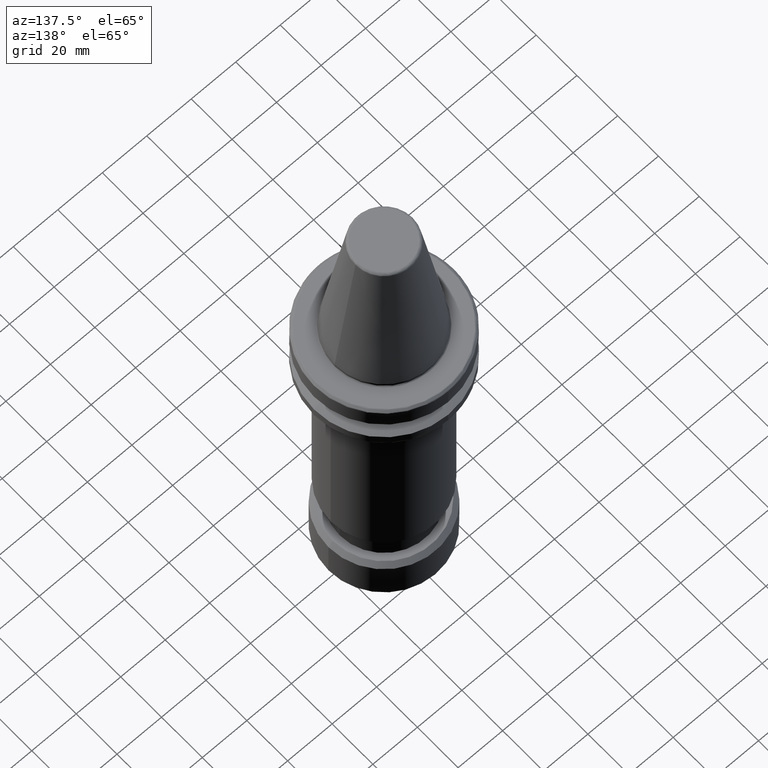
[diagram: clean part render]
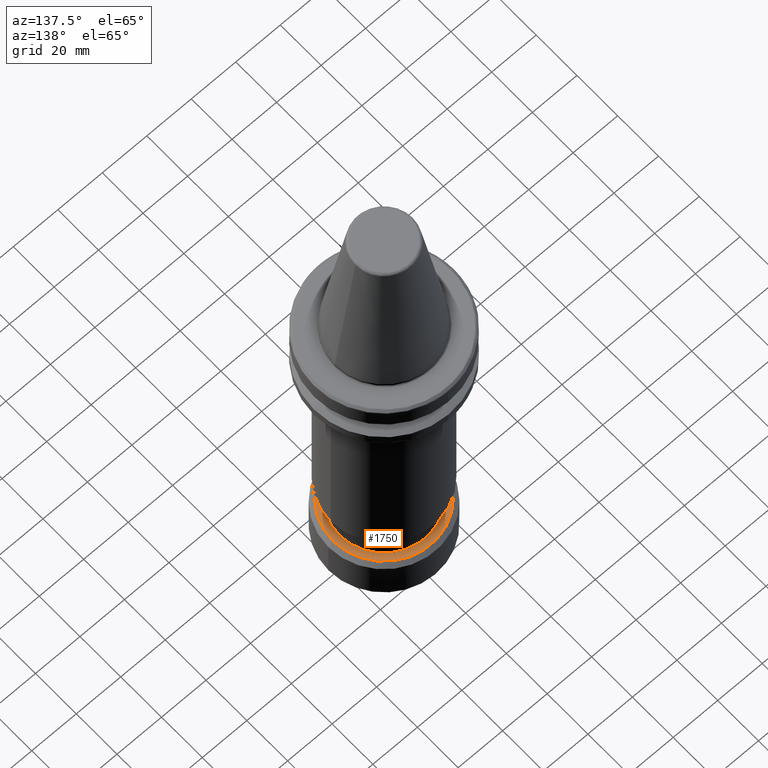
[diagram: same view with one face highlighted and labeled with its STEP entity id]
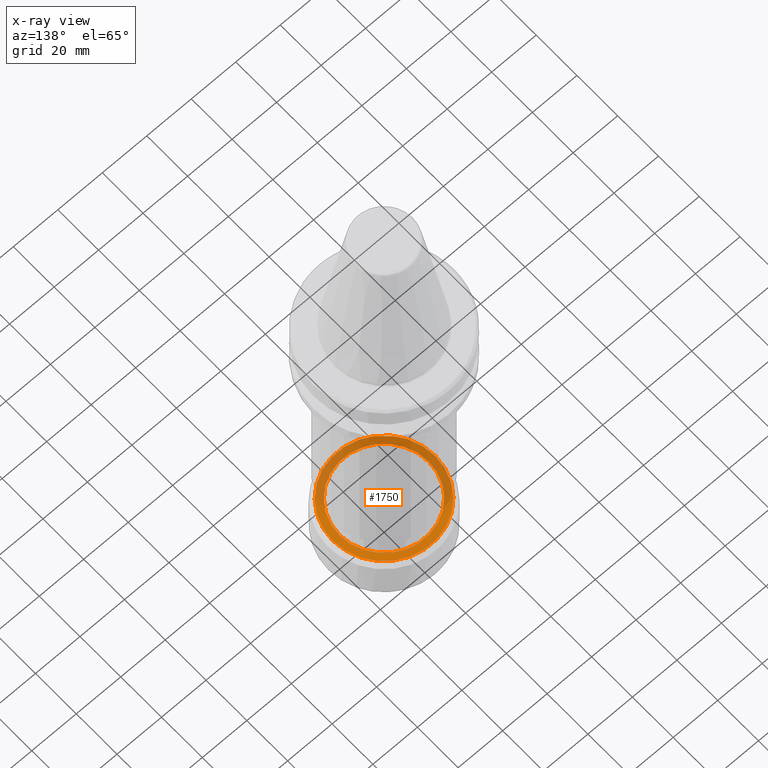
[diagram: x-ray of the same camera — body ghosted, the highlighted face saturated]
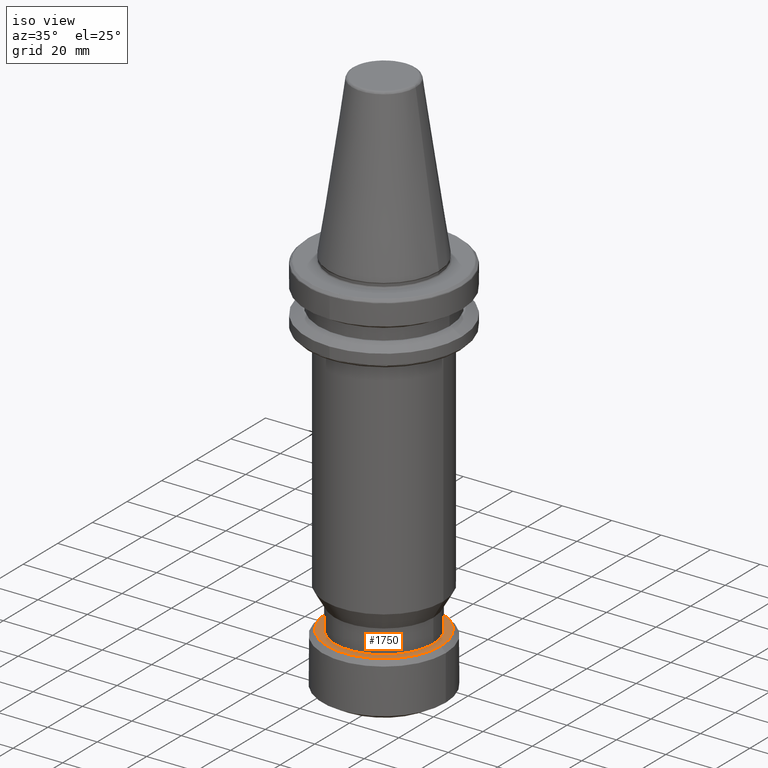
[diagram: same view with one face highlighted and labeled with its STEP entity id]
A machine part, auxiliary view. The second image highlights one B-rep face of the part: STEP entity #1750.
The next image is the same camera in x-ray: the body ghosted, the highlighted face saturated — about 52% of this face is hidden behind the body in this view.
A second angle (iso view) of the same face is appended — the face is thin or edge-on in the first view.
In plain terms, the highlighted planar face has unit normal (0, 0, -1).
Its self-contained STEP definition (entity closure, byte-faithful):
#28 = DIRECTION ( 'NONE',  ( -1.000000000000000000, 0.0000000000000000000, 0.0000000000000000000 ) ) ;
#29 = EDGE_CURVE ( 'NONE', #2397, #2002, #2644, .T. ) ;
#55 = AXIS2_PLACEMENT_3D ( 'NONE', #2783, #2785, #2788 ) ;
#153 = VERTEX_POINT ( 'NONE', #2551 ) ;
#161 = EDGE_CURVE ( 'NONE', #2342, #153, #2345, .T. ) ;
#172 = DIRECTION ( 'NONE',  ( 1.000000000000000000, 0.0000000000000000000, 0.0000000000000000000 ) ) ;
#233 = DIRECTION ( 'NONE',  ( -0.0000000000000000000, -0.0000000000000000000, 1.000000000000000000 ) ) ;
#341 = AXIS2_PLACEMENT_3D ( 'NONE', #2913, #3064, #2276 ) ;
#664 = ORIENTED_EDGE ( 'NONE', *, *, #1576, .F. ) ;
#672 = CIRCLE ( 'NONE', #55, 19.94999999999999900 ) ;
#678 = CIRCLE ( 'NONE', #1812, 23.00000000000000000 ) ;
#750 = CARTESIAN_POINT ( 'NONE',  ( 0.0000000000000000000, 0.0000000000000000000, -137.0000000000000000 ) ) ;
#1173 = FACE_OUTER_BOUND ( 'NONE', #3107, .T. ) ;
#1181 = FACE_BOUND ( 'NONE', #2616, .T. ) ;
#1325 = ORIENTED_EDGE ( 'NONE', *, *, #1608, .T. ) ;
#1576 = EDGE_CURVE ( 'NONE', #2002, #2397, #672, .T. ) ;
#1608 = EDGE_CURVE ( 'NONE', #153, #2342, #678, .T. ) ;
#1718 = CARTESIAN_POINT ( 'NONE',  ( -19.94999999999999900, 2.443170364298969400E-015, -137.0000000000000000 ) ) ;
#1750 = ADVANCED_FACE ( 'NONE', ( #1181, #1173 ), #3043, .F. ) ;
#1812 = AXIS2_PLACEMENT_3D ( 'NONE', #2800, #2805, #2810 ) ;
#1826 = CARTESIAN_POINT ( 'NONE',  ( 0.0000000000000000000, 0.0000000000000000000, -137.0000000000000000 ) ) ;
#1930 = DIRECTION ( 'NONE',  ( 0.0000000000000000000, -0.0000000000000000000, 1.000000000000000000 ) ) ;
#2002 = VERTEX_POINT ( 'NONE', #2615 ) ;
#2026 = CARTESIAN_POINT ( 'NONE',  ( 23.00000000000000000, 2.939152317953647900E-015, -137.0000000000000000 ) ) ;
#2276 = DIRECTION ( 'NONE',  ( -1.000000000000000000, 0.0000000000000000000, 0.0000000000000000000 ) ) ;
#2342 = VERTEX_POINT ( 'NONE', #2026 ) ;
#2345 = CIRCLE ( 'NONE', #3412, 23.00000000000000000 ) ;
#2397 = VERTEX_POINT ( 'NONE', #1718 ) ;
#2529 = AXIS2_PLACEMENT_3D ( 'NONE', #1826, #1930, #172 ) ;
#2551 = CARTESIAN_POINT ( 'NONE',  ( -23.00000000000000000, 0.0000000000000000000, -137.0000000000000000 ) ) ;
#2554 = ORIENTED_EDGE ( 'NONE', *, *, #161, .T. ) ;
#2615 = CARTESIAN_POINT ( 'NONE',  ( 19.94999999999999900, 0.0000000000000000000, -137.0000000000000000 ) ) ;
#2616 = EDGE_LOOP ( 'NONE', ( #664, #3036 ) ) ;
#2644 = CIRCLE ( 'NONE', #2529, 19.94999999999999900 ) ;
#2783 = CARTESIAN_POINT ( 'NONE',  ( 0.0000000000000000000, 0.0000000000000000000, -137.0000000000000000 ) ) ;
#2785 = DIRECTION ( 'NONE',  ( 0.0000000000000000000, -0.0000000000000000000, 1.000000000000000000 ) ) ;
#2788 = DIRECTION ( 'NONE',  ( 1.000000000000000000, 0.0000000000000000000, 0.0000000000000000000 ) ) ;
#2800 = CARTESIAN_POINT ( 'NONE',  ( 0.0000000000000000000, 0.0000000000000000000, -137.0000000000000000 ) ) ;
#2805 = DIRECTION ( 'NONE',  ( -0.0000000000000000000, -0.0000000000000000000, 1.000000000000000000 ) ) ;
#2810 = DIRECTION ( 'NONE',  ( -1.000000000000000000, 0.0000000000000000000, 0.0000000000000000000 ) ) ;
#2913 = CARTESIAN_POINT ( 'NONE',  ( 23.27600000000000000, -23.27600000000000000, -137.0000000000000000 ) ) ;
#3036 = ORIENTED_EDGE ( 'NONE', *, *, #29, .F. ) ;
#3043 = PLANE ( 'NONE',  #341 ) ;
#3064 = DIRECTION ( 'NONE',  ( 0.0000000000000000000, 0.0000000000000000000, -1.000000000000000000 ) ) ;
#3107 = EDGE_LOOP ( 'NONE', ( #1325, #2554 ) ) ;
#3412 = AXIS2_PLACEMENT_3D ( 'NONE', #750, #233, #28 ) ;